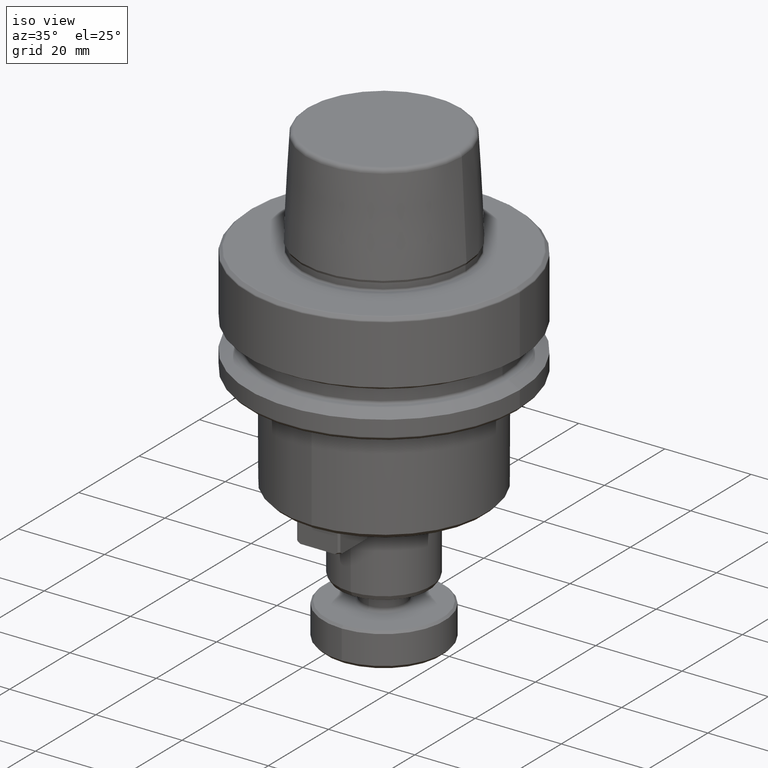
[diagram: clean part render]
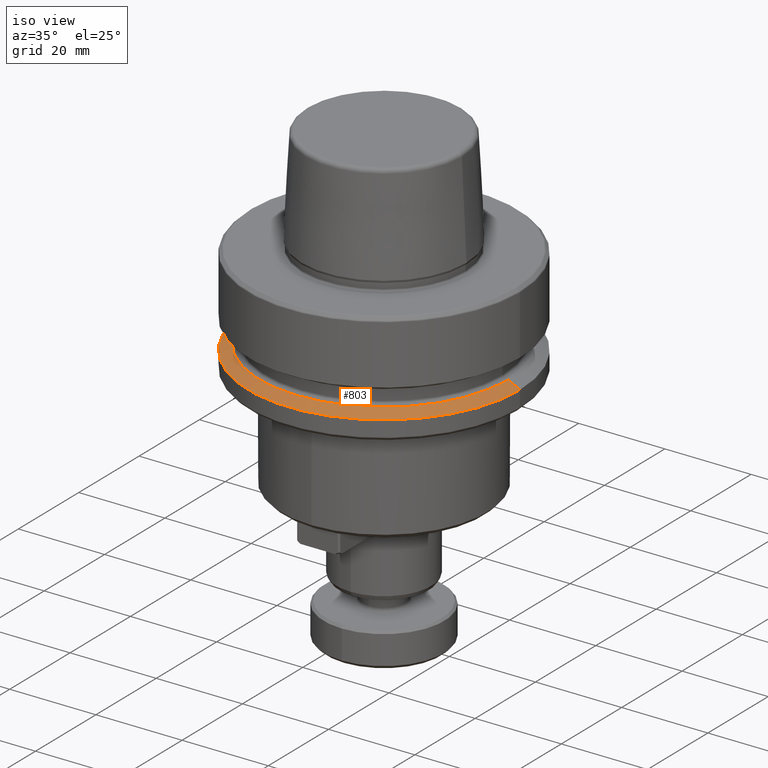
[diagram: same view with one face highlighted and labeled with its STEP entity id]
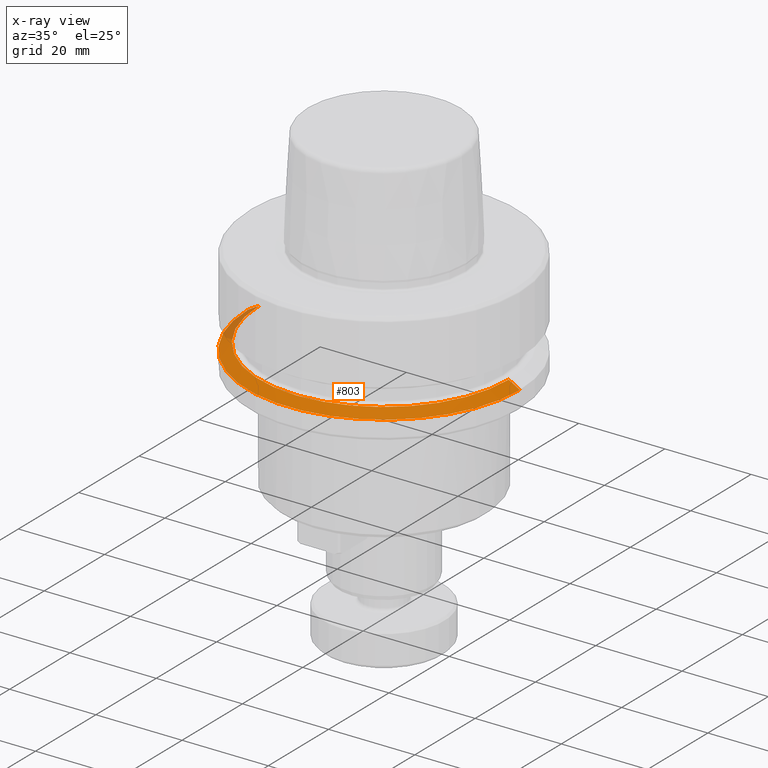
[diagram: x-ray of the same camera — body ghosted, the highlighted face saturated]
A machine part, iso view. The second image highlights one B-rep face of the part: STEP entity #803.
The next image is the same camera in x-ray: the body ghosted, the highlighted face saturated — about 5% of this face is hidden behind the body in this view.
In plain terms, the highlighted conical surface has half-angle 60 deg.
Its self-contained STEP definition (entity closure, byte-faithful):
#33 = VECTOR ( 'NONE', #2467, 1000.000000000000000 ) ;
#40 = EDGE_LOOP ( 'NONE', ( #832, #2639, #111, #1433 ) ) ;
#42 = DIRECTION ( 'NONE',  ( -0.0000000000000000000, -0.0000000000000000000, 1.000000000000000000 ) ) ;
#111 = ORIENTED_EDGE ( 'NONE', *, *, #881, .T. ) ;
#116 = CARTESIAN_POINT ( 'NONE',  ( -43.64432970522239700, -4.286756626697748400, 41.94325737864614500 ) ) ;
#463 = CARTESIAN_POINT ( 'NONE',  ( -12.14432970522239700, -4.286756626697751900, 41.94325737864614500 ) ) ;
#480 = AXIS2_PLACEMENT_3D ( 'NONE', #1296, #1054, #1747 ) ;
#589 = CIRCLE ( 'NONE', #1214, 31.50000000000000000 ) ;
#688 = VECTOR ( 'NONE', #2673, 1000.000000000000000 ) ;
#692 = DIRECTION ( 'NONE',  ( 1.000000000000000000, 0.0000000000000000000, 0.0000000000000000000 ) ) ;
#803 = ADVANCED_FACE ( 'NONE', ( #2108 ), #2647, .T. ) ;
#832 = ORIENTED_EDGE ( 'NONE', *, *, #933, .F. ) ;
#881 = EDGE_CURVE ( 'NONE', #2811, #1826, #1910, .T. ) ;
#933 = EDGE_CURVE ( 'NONE', #2425, #2894, #1223, .T. ) ;
#1054 = DIRECTION ( 'NONE',  ( 0.0000000000000000000, 0.0000000000000000000, -1.000000000000000000 ) ) ;
#1186 = AXIS2_PLACEMENT_3D ( 'NONE', #1395, #42, #1626 ) ;
#1214 = AXIS2_PLACEMENT_3D ( 'NONE', #463, #2057, #692 ) ;
#1223 = LINE ( 'NONE', #1796, #33 ) ;
#1296 = CARTESIAN_POINT ( 'NONE',  ( -12.14432970522239700, -4.286756626697751900, 43.42075645340546700 ) ) ;
#1308 = CARTESIAN_POINT ( 'NONE',  ( 16.79656682915845800, -4.286756626697748400, 43.42075645340546700 ) ) ;
#1395 = CARTESIAN_POINT ( 'NONE',  ( -12.14432970522239700, -4.286756626697751900, 43.42075645340546700 ) ) ;
#1433 = ORIENTED_EDGE ( 'NONE', *, *, #2620, .T. ) ;
#1626 = DIRECTION ( 'NONE',  ( 1.000000000000000000, 0.0000000000000000000, 0.0000000000000000000 ) ) ;
#1656 = EDGE_CURVE ( 'NONE', #2811, #2425, #2221, .T. ) ;
#1747 = DIRECTION ( 'NONE',  ( -1.000000000000000000, 0.0000000000000000000, 0.0000000000000000000 ) ) ;
#1796 = CARTESIAN_POINT ( 'NONE',  ( 16.79656682915845800, -4.286756626697748400, 43.42075645340546700 ) ) ;
#1826 = VERTEX_POINT ( 'NONE', #116 ) ;
#1910 = LINE ( 'NONE', #2684, #688 ) ;
#2057 = DIRECTION ( 'NONE',  ( -0.0000000000000000000, -0.0000000000000000000, 1.000000000000000000 ) ) ;
#2108 = FACE_OUTER_BOUND ( 'NONE', #40, .T. ) ;
#2138 = CARTESIAN_POINT ( 'NONE',  ( 19.35567029477760300, -4.286756626697751900, 41.94325737864614500 ) ) ;
#2221 = CIRCLE ( 'NONE', #1186, 28.94089653438085100 ) ;
#2336 = CARTESIAN_POINT ( 'NONE',  ( -41.08522623960325100, -4.286756626697751900, 43.42075645340546700 ) ) ;
#2425 = VERTEX_POINT ( 'NONE', #1308 ) ;
#2467 = DIRECTION ( 'NONE',  ( 0.8660254037844389300, 1.060575238724907300E-016, -0.4999999999999995000 ) ) ;
#2620 = EDGE_CURVE ( 'NONE', #1826, #2894, #589, .T. ) ;
#2639 = ORIENTED_EDGE ( 'NONE', *, *, #1656, .F. ) ;
#2647 = CONICAL_SURFACE ( 'NONE', #480, 28.94089653438085100, 1.047197551196598300 ) ;
#2673 = DIRECTION ( 'NONE',  ( -0.8660254037844389300, 0.0000000000000000000, -0.4999999999999995000 ) ) ;
#2684 = CARTESIAN_POINT ( 'NONE',  ( -41.08522623960325100, -4.286756626697751900, 43.42075645340546700 ) ) ;
#2811 = VERTEX_POINT ( 'NONE', #2336 ) ;
#2894 = VERTEX_POINT ( 'NONE', #2138 ) ;